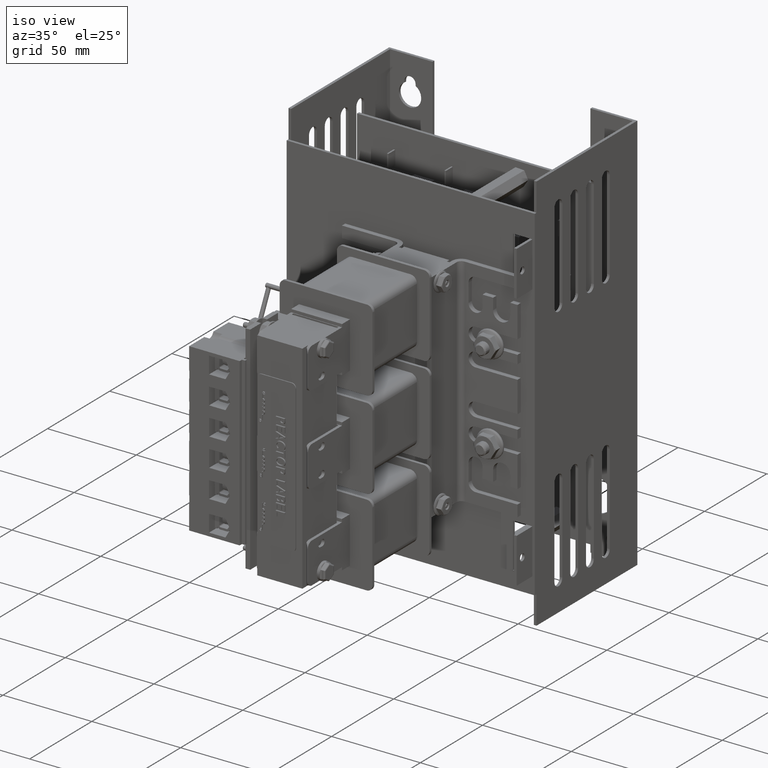
[diagram: clean part render]
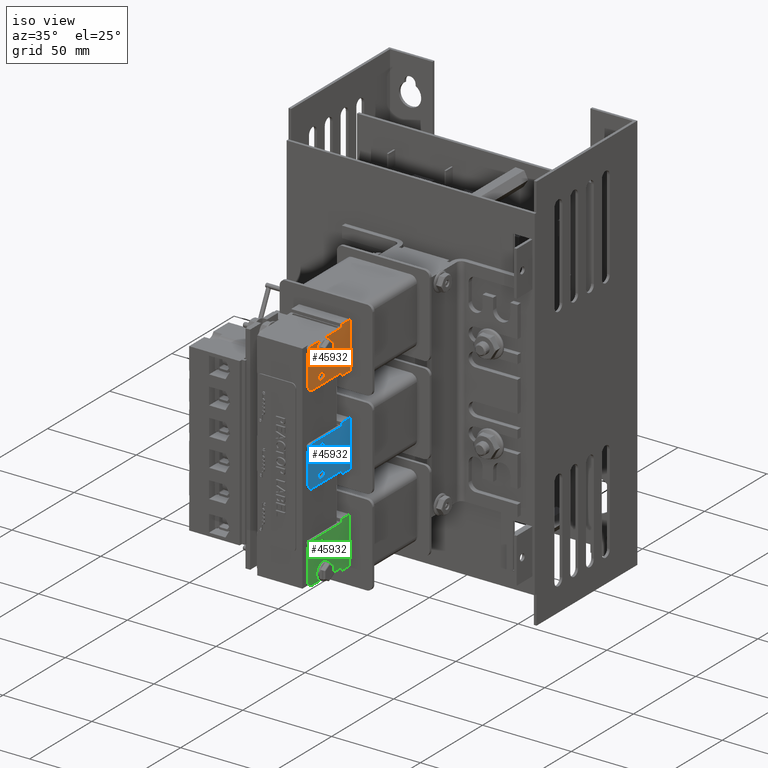
[diagram: same view with three faces highlighted in distinct colors, each labeled with its STEP entity id]
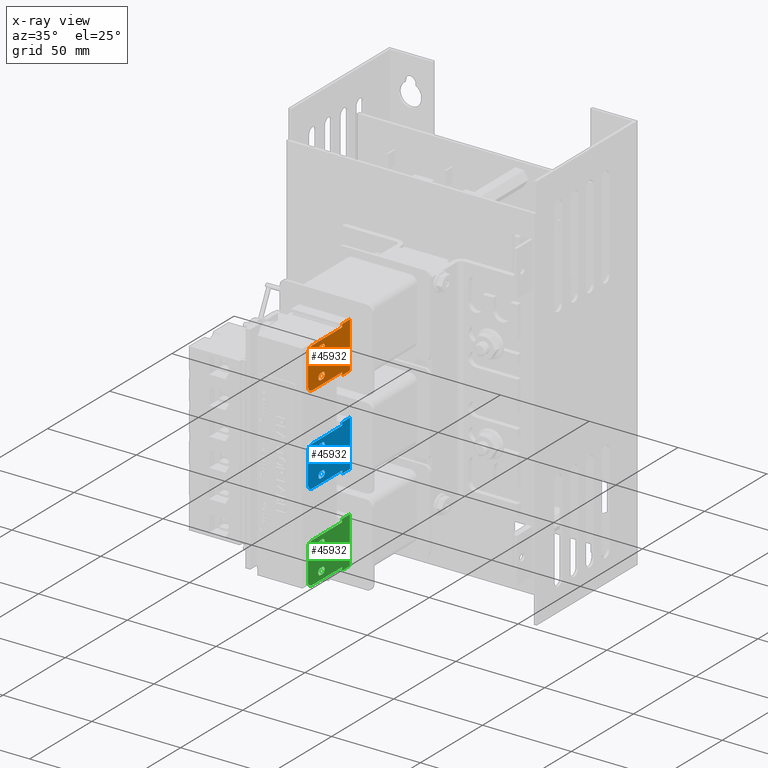
[diagram: x-ray of the same camera — body ghosted, the three highlighted faces saturated]
A machine part, iso view with three faces highlighted in distinct colors.
The next image is the same camera in x-ray (body ghosted, the three faces saturated) — at least one of them is partly hidden behind the body in this view.
Their STEP definitions:

[orange] entity #45932 — the highlighted planar face has unit normal (1, -0, -0).
#1419=FACE_BOUND('',#8494,.T.);
#1420=FACE_BOUND('',#8495,.T.);
#2563=PLANE('',#50130);
#5744=FACE_OUTER_BOUND('',#8493,.T.);
#8493=EDGE_LOOP('',(#39375,#39376,#39377,#39378,#39379,#39380,#39381,#39382,
#39383,#39384));
#8494=EDGE_LOOP('',(#39385,#39386,#39387,#39388));
#8495=EDGE_LOOP('',(#39389,#39390,#39391,#39392));
#12349=LINE('',#73508,#17084);
#12357=LINE('',#73535,#17092);
#12365=LINE('',#73556,#17100);
#12373=LINE('',#73583,#17108);
#12524=LINE('',#73920,#17259);
#12561=LINE('',#74015,#17296);
#12573=LINE('',#74046,#17308);
#12574=LINE('',#74048,#17309);
#12575=LINE('',#74049,#17310);
#12576=LINE('',#74051,#17311);
#12577=LINE('',#74053,#17312);
#12578=LINE('',#74054,#17313);
#17084=VECTOR('',#59043,0.393700787401575);
#17092=VECTOR('',#59073,0.393700787401575);
#17100=VECTOR('',#59091,0.393700787401575);
#17108=VECTOR('',#59121,0.393700787401575);
#17259=VECTOR('',#59402,0.393700787401575);
#17296=VECTOR('',#59491,0.393700787401575);
#17308=VECTOR('',#59517,0.393700787401575);
#17309=VECTOR('',#59518,0.393700787401575);
#17310=VECTOR('',#59519,0.393700787401575);
#17311=VECTOR('',#59520,0.393700787401575);
#17312=VECTOR('',#59521,0.393700787401575);
#17313=VECTOR('',#59522,0.393700787401575);
#19960=CIRCLE('',#50011,0.07);
#19964=CIRCLE('',#50019,0.07);
#19968=CIRCLE('',#50027,0.07);
#19972=CIRCLE('',#50035,0.07);
#19993=CIRCLE('',#50120,0.125);
#19996=CIRCLE('',#50129,0.125);
#22880=VERTEX_POINT('',#73505);
#22881=VERTEX_POINT('',#73507);
#22885=VERTEX_POINT('',#73519);
#22889=VERTEX_POINT('',#73534);
#22896=VERTEX_POINT('',#73553);
#22897=VERTEX_POINT('',#73555);
#22901=VERTEX_POINT('',#73567);
#22905=VERTEX_POINT('',#73582);
#23025=VERTEX_POINT('',#73917);
#23026=VERTEX_POINT('',#73919);
#23052=VERTEX_POINT('',#74000);
#23053=VERTEX_POINT('',#74001);
#23058=VERTEX_POINT('',#74013);
#23069=VERTEX_POINT('',#74041);
#23070=VERTEX_POINT('',#74045);
#23071=VERTEX_POINT('',#74047);
#23072=VERTEX_POINT('',#74050);
#23073=VERTEX_POINT('',#74052);
#28522=EDGE_CURVE('',#22881,#22880,#12349,.T.);
#28528=EDGE_CURVE('',#22885,#22881,#19960,.T.);
#28536=EDGE_CURVE('',#22889,#22885,#12357,.T.);
#28539=EDGE_CURVE('',#22880,#22889,#19964,.T.);
#28546=EDGE_CURVE('',#22897,#22896,#12365,.T.);
#28552=EDGE_CURVE('',#22901,#22897,#19968,.T.);
#28560=EDGE_CURVE('',#22905,#22901,#12373,.T.);
#28563=EDGE_CURVE('',#22896,#22905,#19972,.T.);
#28727=EDGE_CURVE('',#23025,#23026,#12524,.T.);
#28768=EDGE_CURVE('',#23052,#23053,#19993,.T.);
#28775=EDGE_CURVE('',#23052,#23058,#12561,.T.);
#28789=EDGE_CURVE('',#23069,#23058,#19996,.T.);
#28790=EDGE_CURVE('',#23070,#23069,#12573,.T.);
#28791=EDGE_CURVE('',#23070,#23071,#12574,.T.);
#28792=EDGE_CURVE('',#23026,#23071,#12575,.T.);
#28793=EDGE_CURVE('',#23025,#23072,#12576,.T.);
#28794=EDGE_CURVE('',#23072,#23073,#12577,.T.);
#28795=EDGE_CURVE('',#23073,#23053,#12578,.T.);
#39375=ORIENTED_EDGE('',*,*,#28768,.F.);
#39376=ORIENTED_EDGE('',*,*,#28775,.T.);
#39377=ORIENTED_EDGE('',*,*,#28789,.F.);
#39378=ORIENTED_EDGE('',*,*,#28790,.F.);
#39379=ORIENTED_EDGE('',*,*,#28791,.T.);
#39380=ORIENTED_EDGE('',*,*,#28792,.F.);
#39381=ORIENTED_EDGE('',*,*,#28727,.F.);
#39382=ORIENTED_EDGE('',*,*,#28793,.T.);
#39383=ORIENTED_EDGE('',*,*,#28794,.T.);
#39384=ORIENTED_EDGE('',*,*,#28795,.T.);
#39385=ORIENTED_EDGE('',*,*,#28536,.T.);
#39386=ORIENTED_EDGE('',*,*,#28528,.T.);
#39387=ORIENTED_EDGE('',*,*,#28522,.T.);
#39388=ORIENTED_EDGE('',*,*,#28539,.T.);
#39389=ORIENTED_EDGE('',*,*,#28560,.T.);
#39390=ORIENTED_EDGE('',*,*,#28552,.T.);
#39391=ORIENTED_EDGE('',*,*,#28546,.T.);
#39392=ORIENTED_EDGE('',*,*,#28563,.T.);
#45932=ADVANCED_FACE('',(#5744,#1419,#1420),#2563,.T.);
#50011=AXIS2_PLACEMENT_3D('',#73520,#59056,#59057);
#50019=AXIS2_PLACEMENT_3D('',#73539,#59079,#59080);
#50027=AXIS2_PLACEMENT_3D('',#73568,#59104,#59105);
#50035=AXIS2_PLACEMENT_3D('',#73587,#59127,#59128);
#50120=AXIS2_PLACEMENT_3D('',#74002,#59479,#59480);
#50129=AXIS2_PLACEMENT_3D('',#74043,#59513,#59514);
#50130=AXIS2_PLACEMENT_3D('',#74044,#59515,#59516);
#59043=DIRECTION('',(-1.45698559662094E-15,-1.49204103276227E-76,-1.));
#59056=DIRECTION('center_axis',(1.02406024892945E-61,-1.,0.));
#59057=DIRECTION('ref_axis',(0.997394122485867,2.49627536056786E-16,-0.0721454394306873));
#59073=DIRECTION('',(0.,0.,1.));
#59079=DIRECTION('center_axis',(1.02406024892945E-61,-1.,0.));
#59080=DIRECTION('ref_axis',(-1.,-2.50279734388873E-16,0.));
#59091=DIRECTION('',(-1.45698559662094E-15,-1.49204103276227E-76,1.));
#59104=DIRECTION('center_axis',(1.02406024892945E-61,-1.,0.));
#59105=DIRECTION('ref_axis',(-0.997394122485867,-2.13966459477245E-16,0.0721454394306873));
#59121=DIRECTION('',(0.,0.,-1.));
#59127=DIRECTION('center_axis',(1.02406024892945E-61,-1.,0.));
#59128=DIRECTION('ref_axis',(1.,2.14525486619034E-16,0.));
#59402=DIRECTION('',(1.,1.02406024892945E-61,-3.73807526705322E-31));
#59479=DIRECTION('center_axis',(1.02406024892945E-61,-1.,0.));
#59480=DIRECTION('ref_axis',(-0.707106781186549,0.,0.707106781186547));
#59491=DIRECTION('',(1.,1.96269059991116E-61,-8.42907325654887E-31));
#59513=DIRECTION('center_axis',(1.02406024892945E-61,-1.,0.));
#59514=DIRECTION('ref_axis',(0.707106781186549,0.,0.707106781186546));
#59515=DIRECTION('center_axis',(-1.02406024892945E-61,1.,0.));
#59516=DIRECTION('ref_axis',(0.,0.,1.));
#59517=DIRECTION('',(8.62708776488421E-31,0.,1.));
#59518=DIRECTION('',(1.,1.02406024892945E-61,-3.73807526705322E-31));
#59519=DIRECTION('',(0.,0.,1.));
#59520=DIRECTION('',(0.,0.,1.));
#59521=DIRECTION('',(1.,1.02406024892945E-61,-3.73807526705322E-31));
#59522=DIRECTION('',(8.62708776488421E-31,0.,1.));
#73505=CARTESIAN_POINT('',(-0.24,1.065,1.805));
#73507=CARTESIAN_POINT('',(-0.24,1.065,1.865));
#73508=CARTESIAN_POINT('',(-0.240000000000001,1.065,1.4));
#73519=CARTESIAN_POINT('',(-0.10018241142599,1.065,1.87005018076015));
#73520=CARTESIAN_POINT('Origin',(-0.17,1.065,1.865));
#73534=CARTESIAN_POINT('',(-0.10018241142599,1.065,1.79994981923985));
#73535=CARTESIAN_POINT('',(-0.10018241142599,1.065,1.39747490961993));
#73539=CARTESIAN_POINT('Origin',(-0.17,1.065,1.805));
#73553=CARTESIAN_POINT('',(-0.66,1.065,1.865));
#73555=CARTESIAN_POINT('',(-0.66,1.065,1.805));
#73556=CARTESIAN_POINT('',(-0.66,1.065,1.37));
#73567=CARTESIAN_POINT('',(-0.799817588574011,1.065,1.79994981923985));
#73568=CARTESIAN_POINT('Origin',(-0.73,1.065,1.805));
#73582=CARTESIAN_POINT('',(-0.799817588574011,1.065,1.87005018076015));
#73583=CARTESIAN_POINT('',(-0.799817588574011,1.065,1.37252509038007));
#73587=CARTESIAN_POINT('Origin',(-0.73,1.065,1.865));
#73917=CARTESIAN_POINT('',(-0.965,1.065,0.935));
#73919=CARTESIAN_POINT('',(0.0649999999999997,1.065,0.935));
#73920=CARTESIAN_POINT('',(-0.7075,1.065,0.935));
#74000=CARTESIAN_POINT('',(-0.775,1.065,2.265));
#74001=CARTESIAN_POINT('',(-0.9,1.065,2.14));
#74002=CARTESIAN_POINT('Origin',(-0.775,1.065,2.14));
#74013=CARTESIAN_POINT('',(-0.125,1.065,2.265));
#74015=CARTESIAN_POINT('',(0.0649999999999997,1.065,2.265));
#74041=CARTESIAN_POINT('',(-5.24514814783537E-16,1.065,2.14));
#74043=CARTESIAN_POINT('Origin',(-0.125,1.065,2.14));
#74044=CARTESIAN_POINT('Origin',(-0.965,1.065,0.935));
#74045=CARTESIAN_POINT('',(-5.24514814783538E-16,1.065,1.185));
#74046=CARTESIAN_POINT('',(-5.24514814783538E-16,1.065,1.185));
#74047=CARTESIAN_POINT('',(0.0649999999999997,1.065,1.185));
#74048=CARTESIAN_POINT('',(-0.965,1.065,1.185));
#74049=CARTESIAN_POINT('',(0.0649999999999997,1.065,0.935));
#74050=CARTESIAN_POINT('',(-0.965,1.065,1.185));
#74051=CARTESIAN_POINT('',(-0.965,1.065,0.935));
#74052=CARTESIAN_POINT('',(-0.9,1.065,1.185));
#74053=CARTESIAN_POINT('',(-0.965,1.065,1.185));
#74054=CARTESIAN_POINT('',(-0.9,1.065,1.185));

[blue] entity #45932 — the highlighted planar face has unit normal (1, 0, -0).
#1419=FACE_BOUND('',#8494,.T.);
#1420=FACE_BOUND('',#8495,.T.);
#2563=PLANE('',#50130);
#5744=FACE_OUTER_BOUND('',#8493,.T.);
#8493=EDGE_LOOP('',(#39375,#39376,#39377,#39378,#39379,#39380,#39381,#39382,
#39383,#39384));
#8494=EDGE_LOOP('',(#39385,#39386,#39387,#39388));
#8495=EDGE_LOOP('',(#39389,#39390,#39391,#39392));
#12349=LINE('',#73508,#17084);
#12357=LINE('',#73535,#17092);
#12365=LINE('',#73556,#17100);
#12373=LINE('',#73583,#17108);
#12524=LINE('',#73920,#17259);
#12561=LINE('',#74015,#17296);
#12573=LINE('',#74046,#17308);
#12574=LINE('',#74048,#17309);
#12575=LINE('',#74049,#17310);
#12576=LINE('',#74051,#17311);
#12577=LINE('',#74053,#17312);
#12578=LINE('',#74054,#17313);
#17084=VECTOR('',#59043,0.393700787401575);
#17092=VECTOR('',#59073,0.393700787401575);
#17100=VECTOR('',#59091,0.393700787401575);
#17108=VECTOR('',#59121,0.393700787401575);
#17259=VECTOR('',#59402,0.393700787401575);
#17296=VECTOR('',#59491,0.393700787401575);
#17308=VECTOR('',#59517,0.393700787401575);
#17309=VECTOR('',#59518,0.393700787401575);
#17310=VECTOR('',#59519,0.393700787401575);
#17311=VECTOR('',#59520,0.393700787401575);
#17312=VECTOR('',#59521,0.393700787401575);
#17313=VECTOR('',#59522,0.393700787401575);
#19960=CIRCLE('',#50011,0.07);
#19964=CIRCLE('',#50019,0.07);
#19968=CIRCLE('',#50027,0.07);
#19972=CIRCLE('',#50035,0.07);
#19993=CIRCLE('',#50120,0.125);
#19996=CIRCLE('',#50129,0.125);
#22880=VERTEX_POINT('',#73505);
#22881=VERTEX_POINT('',#73507);
#22885=VERTEX_POINT('',#73519);
#22889=VERTEX_POINT('',#73534);
#22896=VERTEX_POINT('',#73553);
#22897=VERTEX_POINT('',#73555);
#22901=VERTEX_POINT('',#73567);
#22905=VERTEX_POINT('',#73582);
#23025=VERTEX_POINT('',#73917);
#23026=VERTEX_POINT('',#73919);
#23052=VERTEX_POINT('',#74000);
#23053=VERTEX_POINT('',#74001);
#23058=VERTEX_POINT('',#74013);
#23069=VERTEX_POINT('',#74041);
#23070=VERTEX_POINT('',#74045);
#23071=VERTEX_POINT('',#74047);
#23072=VERTEX_POINT('',#74050);
#23073=VERTEX_POINT('',#74052);
#28522=EDGE_CURVE('',#22881,#22880,#12349,.T.);
#28528=EDGE_CURVE('',#22885,#22881,#19960,.T.);
#28536=EDGE_CURVE('',#22889,#22885,#12357,.T.);
#28539=EDGE_CURVE('',#22880,#22889,#19964,.T.);
#28546=EDGE_CURVE('',#22897,#22896,#12365,.T.);
#28552=EDGE_CURVE('',#22901,#22897,#19968,.T.);
#28560=EDGE_CURVE('',#22905,#22901,#12373,.T.);
#28563=EDGE_CURVE('',#22896,#22905,#19972,.T.);
#28727=EDGE_CURVE('',#23025,#23026,#12524,.T.);
#28768=EDGE_CURVE('',#23052,#23053,#19993,.T.);
#28775=EDGE_CURVE('',#23052,#23058,#12561,.T.);
#28789=EDGE_CURVE('',#23069,#23058,#19996,.T.);
#28790=EDGE_CURVE('',#23070,#23069,#12573,.T.);
#28791=EDGE_CURVE('',#23070,#23071,#12574,.T.);
#28792=EDGE_CURVE('',#23026,#23071,#12575,.T.);
#28793=EDGE_CURVE('',#23025,#23072,#12576,.T.);
#28794=EDGE_CURVE('',#23072,#23073,#12577,.T.);
#28795=EDGE_CURVE('',#23073,#23053,#12578,.T.);
#39375=ORIENTED_EDGE('',*,*,#28768,.F.);
#39376=ORIENTED_EDGE('',*,*,#28775,.T.);
#39377=ORIENTED_EDGE('',*,*,#28789,.F.);
#39378=ORIENTED_EDGE('',*,*,#28790,.F.);
#39379=ORIENTED_EDGE('',*,*,#28791,.T.);
#39380=ORIENTED_EDGE('',*,*,#28792,.F.);
#39381=ORIENTED_EDGE('',*,*,#28727,.F.);
#39382=ORIENTED_EDGE('',*,*,#28793,.T.);
#39383=ORIENTED_EDGE('',*,*,#28794,.T.);
#39384=ORIENTED_EDGE('',*,*,#28795,.T.);
#39385=ORIENTED_EDGE('',*,*,#28536,.T.);
#39386=ORIENTED_EDGE('',*,*,#28528,.T.);
#39387=ORIENTED_EDGE('',*,*,#28522,.T.);
#39388=ORIENTED_EDGE('',*,*,#28539,.T.);
#39389=ORIENTED_EDGE('',*,*,#28560,.T.);
#39390=ORIENTED_EDGE('',*,*,#28552,.T.);
#39391=ORIENTED_EDGE('',*,*,#28546,.T.);
#39392=ORIENTED_EDGE('',*,*,#28563,.T.);
#45932=ADVANCED_FACE('',(#5744,#1419,#1420),#2563,.T.);
#50011=AXIS2_PLACEMENT_3D('',#73520,#59056,#59057);
#50019=AXIS2_PLACEMENT_3D('',#73539,#59079,#59080);
#50027=AXIS2_PLACEMENT_3D('',#73568,#59104,#59105);
#50035=AXIS2_PLACEMENT_3D('',#73587,#59127,#59128);
#50120=AXIS2_PLACEMENT_3D('',#74002,#59479,#59480);
#50129=AXIS2_PLACEMENT_3D('',#74043,#59513,#59514);
#50130=AXIS2_PLACEMENT_3D('',#74044,#59515,#59516);
#59043=DIRECTION('',(-1.45698559662094E-15,-1.49204103276227E-76,-1.));
#59056=DIRECTION('center_axis',(1.02406024892945E-61,-1.,0.));
#59057=DIRECTION('ref_axis',(0.997394122485867,2.49627536056786E-16,-0.0721454394306873));
#59073=DIRECTION('',(0.,0.,1.));
#59079=DIRECTION('center_axis',(1.02406024892945E-61,-1.,0.));
#59080=DIRECTION('ref_axis',(-1.,-2.50279734388873E-16,0.));
#59091=DIRECTION('',(-1.45698559662094E-15,-1.49204103276227E-76,1.));
#59104=DIRECTION('center_axis',(1.02406024892945E-61,-1.,0.));
#59105=DIRECTION('ref_axis',(-0.997394122485867,-2.13966459477245E-16,0.0721454394306873));
#59121=DIRECTION('',(0.,0.,-1.));
#59127=DIRECTION('center_axis',(1.02406024892945E-61,-1.,0.));
#59128=DIRECTION('ref_axis',(1.,2.14525486619034E-16,0.));
#59402=DIRECTION('',(1.,1.02406024892945E-61,-3.73807526705322E-31));
#59479=DIRECTION('center_axis',(1.02406024892945E-61,-1.,0.));
#59480=DIRECTION('ref_axis',(-0.707106781186549,0.,0.707106781186547));
#59491=DIRECTION('',(1.,1.96269059991116E-61,-8.42907325654887E-31));
#59513=DIRECTION('center_axis',(1.02406024892945E-61,-1.,0.));
#59514=DIRECTION('ref_axis',(0.707106781186549,0.,0.707106781186546));
#59515=DIRECTION('center_axis',(-1.02406024892945E-61,1.,0.));
#59516=DIRECTION('ref_axis',(0.,0.,1.));
#59517=DIRECTION('',(8.62708776488421E-31,0.,1.));
#59518=DIRECTION('',(1.,1.02406024892945E-61,-3.73807526705322E-31));
#59519=DIRECTION('',(0.,0.,1.));
#59520=DIRECTION('',(0.,0.,1.));
#59521=DIRECTION('',(1.,1.02406024892945E-61,-3.73807526705322E-31));
#59522=DIRECTION('',(8.62708776488421E-31,0.,1.));
#73505=CARTESIAN_POINT('',(-0.24,1.065,1.805));
#73507=CARTESIAN_POINT('',(-0.24,1.065,1.865));
#73508=CARTESIAN_POINT('',(-0.240000000000001,1.065,1.4));
#73519=CARTESIAN_POINT('',(-0.10018241142599,1.065,1.87005018076015));
#73520=CARTESIAN_POINT('Origin',(-0.17,1.065,1.865));
#73534=CARTESIAN_POINT('',(-0.10018241142599,1.065,1.79994981923985));
#73535=CARTESIAN_POINT('',(-0.10018241142599,1.065,1.39747490961993));
#73539=CARTESIAN_POINT('Origin',(-0.17,1.065,1.805));
#73553=CARTESIAN_POINT('',(-0.66,1.065,1.865));
#73555=CARTESIAN_POINT('',(-0.66,1.065,1.805));
#73556=CARTESIAN_POINT('',(-0.66,1.065,1.37));
#73567=CARTESIAN_POINT('',(-0.799817588574011,1.065,1.79994981923985));
#73568=CARTESIAN_POINT('Origin',(-0.73,1.065,1.805));
#73582=CARTESIAN_POINT('',(-0.799817588574011,1.065,1.87005018076015));
#73583=CARTESIAN_POINT('',(-0.799817588574011,1.065,1.37252509038007));
#73587=CARTESIAN_POINT('Origin',(-0.73,1.065,1.865));
#73917=CARTESIAN_POINT('',(-0.965,1.065,0.935));
#73919=CARTESIAN_POINT('',(0.0649999999999997,1.065,0.935));
#73920=CARTESIAN_POINT('',(-0.7075,1.065,0.935));
#74000=CARTESIAN_POINT('',(-0.775,1.065,2.265));
#74001=CARTESIAN_POINT('',(-0.9,1.065,2.14));
#74002=CARTESIAN_POINT('Origin',(-0.775,1.065,2.14));
#74013=CARTESIAN_POINT('',(-0.125,1.065,2.265));
#74015=CARTESIAN_POINT('',(0.0649999999999997,1.065,2.265));
#74041=CARTESIAN_POINT('',(-5.24514814783537E-16,1.065,2.14));
#74043=CARTESIAN_POINT('Origin',(-0.125,1.065,2.14));
#74044=CARTESIAN_POINT('Origin',(-0.965,1.065,0.935));
#74045=CARTESIAN_POINT('',(-5.24514814783538E-16,1.065,1.185));
#74046=CARTESIAN_POINT('',(-5.24514814783538E-16,1.065,1.185));
#74047=CARTESIAN_POINT('',(0.0649999999999997,1.065,1.185));
#74048=CARTESIAN_POINT('',(-0.965,1.065,1.185));
#74049=CARTESIAN_POINT('',(0.0649999999999997,1.065,0.935));
#74050=CARTESIAN_POINT('',(-0.965,1.065,1.185));
#74051=CARTESIAN_POINT('',(-0.965,1.065,0.935));
#74052=CARTESIAN_POINT('',(-0.9,1.065,1.185));
#74053=CARTESIAN_POINT('',(-0.965,1.065,1.185));
#74054=CARTESIAN_POINT('',(-0.9,1.065,1.185));

[green] entity #45932 — the highlighted planar face has unit normal (1, -0, -0).
#1419=FACE_BOUND('',#8494,.T.);
#1420=FACE_BOUND('',#8495,.T.);
#2563=PLANE('',#50130);
#5744=FACE_OUTER_BOUND('',#8493,.T.);
#8493=EDGE_LOOP('',(#39375,#39376,#39377,#39378,#39379,#39380,#39381,#39382,
#39383,#39384));
#8494=EDGE_LOOP('',(#39385,#39386,#39387,#39388));
#8495=EDGE_LOOP('',(#39389,#39390,#39391,#39392));
#12349=LINE('',#73508,#17084);
#12357=LINE('',#73535,#17092);
#12365=LINE('',#73556,#17100);
#12373=LINE('',#73583,#17108);
#12524=LINE('',#73920,#17259);
#12561=LINE('',#74015,#17296);
#12573=LINE('',#74046,#17308);
#12574=LINE('',#74048,#17309);
#12575=LINE('',#74049,#17310);
#12576=LINE('',#74051,#17311);
#12577=LINE('',#74053,#17312);
#12578=LINE('',#74054,#17313);
#17084=VECTOR('',#59043,0.393700787401575);
#17092=VECTOR('',#59073,0.393700787401575);
#17100=VECTOR('',#59091,0.393700787401575);
#17108=VECTOR('',#59121,0.393700787401575);
#17259=VECTOR('',#59402,0.393700787401575);
#17296=VECTOR('',#59491,0.393700787401575);
#17308=VECTOR('',#59517,0.393700787401575);
#17309=VECTOR('',#59518,0.393700787401575);
#17310=VECTOR('',#59519,0.393700787401575);
#17311=VECTOR('',#59520,0.393700787401575);
#17312=VECTOR('',#59521,0.393700787401575);
#17313=VECTOR('',#59522,0.393700787401575);
#19960=CIRCLE('',#50011,0.07);
#19964=CIRCLE('',#50019,0.07);
#19968=CIRCLE('',#50027,0.07);
#19972=CIRCLE('',#50035,0.07);
#19993=CIRCLE('',#50120,0.125);
#19996=CIRCLE('',#50129,0.125);
#22880=VERTEX_POINT('',#73505);
#22881=VERTEX_POINT('',#73507);
#22885=VERTEX_POINT('',#73519);
#22889=VERTEX_POINT('',#73534);
#22896=VERTEX_POINT('',#73553);
#22897=VERTEX_POINT('',#73555);
#22901=VERTEX_POINT('',#73567);
#22905=VERTEX_POINT('',#73582);
#23025=VERTEX_POINT('',#73917);
#23026=VERTEX_POINT('',#73919);
#23052=VERTEX_POINT('',#74000);
#23053=VERTEX_POINT('',#74001);
#23058=VERTEX_POINT('',#74013);
#23069=VERTEX_POINT('',#74041);
#23070=VERTEX_POINT('',#74045);
#23071=VERTEX_POINT('',#74047);
#23072=VERTEX_POINT('',#74050);
#23073=VERTEX_POINT('',#74052);
#28522=EDGE_CURVE('',#22881,#22880,#12349,.T.);
#28528=EDGE_CURVE('',#22885,#22881,#19960,.T.);
#28536=EDGE_CURVE('',#22889,#22885,#12357,.T.);
#28539=EDGE_CURVE('',#22880,#22889,#19964,.T.);
#28546=EDGE_CURVE('',#22897,#22896,#12365,.T.);
#28552=EDGE_CURVE('',#22901,#22897,#19968,.T.);
#28560=EDGE_CURVE('',#22905,#22901,#12373,.T.);
#28563=EDGE_CURVE('',#22896,#22905,#19972,.T.);
#28727=EDGE_CURVE('',#23025,#23026,#12524,.T.);
#28768=EDGE_CURVE('',#23052,#23053,#19993,.T.);
#28775=EDGE_CURVE('',#23052,#23058,#12561,.T.);
#28789=EDGE_CURVE('',#23069,#23058,#19996,.T.);
#28790=EDGE_CURVE('',#23070,#23069,#12573,.T.);
#28791=EDGE_CURVE('',#23070,#23071,#12574,.T.);
#28792=EDGE_CURVE('',#23026,#23071,#12575,.T.);
#28793=EDGE_CURVE('',#23025,#23072,#12576,.T.);
#28794=EDGE_CURVE('',#23072,#23073,#12577,.T.);
#28795=EDGE_CURVE('',#23073,#23053,#12578,.T.);
#39375=ORIENTED_EDGE('',*,*,#28768,.F.);
#39376=ORIENTED_EDGE('',*,*,#28775,.T.);
#39377=ORIENTED_EDGE('',*,*,#28789,.F.);
#39378=ORIENTED_EDGE('',*,*,#28790,.F.);
#39379=ORIENTED_EDGE('',*,*,#28791,.T.);
#39380=ORIENTED_EDGE('',*,*,#28792,.F.);
#39381=ORIENTED_EDGE('',*,*,#28727,.F.);
#39382=ORIENTED_EDGE('',*,*,#28793,.T.);
#39383=ORIENTED_EDGE('',*,*,#28794,.T.);
#39384=ORIENTED_EDGE('',*,*,#28795,.T.);
#39385=ORIENTED_EDGE('',*,*,#28536,.T.);
#39386=ORIENTED_EDGE('',*,*,#28528,.T.);
#39387=ORIENTED_EDGE('',*,*,#28522,.T.);
#39388=ORIENTED_EDGE('',*,*,#28539,.T.);
#39389=ORIENTED_EDGE('',*,*,#28560,.T.);
#39390=ORIENTED_EDGE('',*,*,#28552,.T.);
#39391=ORIENTED_EDGE('',*,*,#28546,.T.);
#39392=ORIENTED_EDGE('',*,*,#28563,.T.);
#45932=ADVANCED_FACE('',(#5744,#1419,#1420),#2563,.T.);
#50011=AXIS2_PLACEMENT_3D('',#73520,#59056,#59057);
#50019=AXIS2_PLACEMENT_3D('',#73539,#59079,#59080);
#50027=AXIS2_PLACEMENT_3D('',#73568,#59104,#59105);
#50035=AXIS2_PLACEMENT_3D('',#73587,#59127,#59128);
#50120=AXIS2_PLACEMENT_3D('',#74002,#59479,#59480);
#50129=AXIS2_PLACEMENT_3D('',#74043,#59513,#59514);
#50130=AXIS2_PLACEMENT_3D('',#74044,#59515,#59516);
#59043=DIRECTION('',(-1.45698559662094E-15,-1.49204103276227E-76,-1.));
#59056=DIRECTION('center_axis',(1.02406024892945E-61,-1.,0.));
#59057=DIRECTION('ref_axis',(0.997394122485867,2.49627536056786E-16,-0.0721454394306873));
#59073=DIRECTION('',(0.,0.,1.));
#59079=DIRECTION('center_axis',(1.02406024892945E-61,-1.,0.));
#59080=DIRECTION('ref_axis',(-1.,-2.50279734388873E-16,0.));
#59091=DIRECTION('',(-1.45698559662094E-15,-1.49204103276227E-76,1.));
#59104=DIRECTION('center_axis',(1.02406024892945E-61,-1.,0.));
#59105=DIRECTION('ref_axis',(-0.997394122485867,-2.13966459477245E-16,0.0721454394306873));
#59121=DIRECTION('',(0.,0.,-1.));
#59127=DIRECTION('center_axis',(1.02406024892945E-61,-1.,0.));
#59128=DIRECTION('ref_axis',(1.,2.14525486619034E-16,0.));
#59402=DIRECTION('',(1.,1.02406024892945E-61,-3.73807526705322E-31));
#59479=DIRECTION('center_axis',(1.02406024892945E-61,-1.,0.));
#59480=DIRECTION('ref_axis',(-0.707106781186549,0.,0.707106781186547));
#59491=DIRECTION('',(1.,1.96269059991116E-61,-8.42907325654887E-31));
#59513=DIRECTION('center_axis',(1.02406024892945E-61,-1.,0.));
#59514=DIRECTION('ref_axis',(0.707106781186549,0.,0.707106781186546));
#59515=DIRECTION('center_axis',(-1.02406024892945E-61,1.,0.));
#59516=DIRECTION('ref_axis',(0.,0.,1.));
#59517=DIRECTION('',(8.62708776488421E-31,0.,1.));
#59518=DIRECTION('',(1.,1.02406024892945E-61,-3.73807526705322E-31));
#59519=DIRECTION('',(0.,0.,1.));
#59520=DIRECTION('',(0.,0.,1.));
#59521=DIRECTION('',(1.,1.02406024892945E-61,-3.73807526705322E-31));
#59522=DIRECTION('',(8.62708776488421E-31,0.,1.));
#73505=CARTESIAN_POINT('',(-0.24,1.065,1.805));
#73507=CARTESIAN_POINT('',(-0.24,1.065,1.865));
#73508=CARTESIAN_POINT('',(-0.240000000000001,1.065,1.4));
#73519=CARTESIAN_POINT('',(-0.10018241142599,1.065,1.87005018076015));
#73520=CARTESIAN_POINT('Origin',(-0.17,1.065,1.865));
#73534=CARTESIAN_POINT('',(-0.10018241142599,1.065,1.79994981923985));
#73535=CARTESIAN_POINT('',(-0.10018241142599,1.065,1.39747490961993));
#73539=CARTESIAN_POINT('Origin',(-0.17,1.065,1.805));
#73553=CARTESIAN_POINT('',(-0.66,1.065,1.865));
#73555=CARTESIAN_POINT('',(-0.66,1.065,1.805));
#73556=CARTESIAN_POINT('',(-0.66,1.065,1.37));
#73567=CARTESIAN_POINT('',(-0.799817588574011,1.065,1.79994981923985));
#73568=CARTESIAN_POINT('Origin',(-0.73,1.065,1.805));
#73582=CARTESIAN_POINT('',(-0.799817588574011,1.065,1.87005018076015));
#73583=CARTESIAN_POINT('',(-0.799817588574011,1.065,1.37252509038007));
#73587=CARTESIAN_POINT('Origin',(-0.73,1.065,1.865));
#73917=CARTESIAN_POINT('',(-0.965,1.065,0.935));
#73919=CARTESIAN_POINT('',(0.0649999999999997,1.065,0.935));
#73920=CARTESIAN_POINT('',(-0.7075,1.065,0.935));
#74000=CARTESIAN_POINT('',(-0.775,1.065,2.265));
#74001=CARTESIAN_POINT('',(-0.9,1.065,2.14));
#74002=CARTESIAN_POINT('Origin',(-0.775,1.065,2.14));
#74013=CARTESIAN_POINT('',(-0.125,1.065,2.265));
#74015=CARTESIAN_POINT('',(0.0649999999999997,1.065,2.265));
#74041=CARTESIAN_POINT('',(-5.24514814783537E-16,1.065,2.14));
#74043=CARTESIAN_POINT('Origin',(-0.125,1.065,2.14));
#74044=CARTESIAN_POINT('Origin',(-0.965,1.065,0.935));
#74045=CARTESIAN_POINT('',(-5.24514814783538E-16,1.065,1.185));
#74046=CARTESIAN_POINT('',(-5.24514814783538E-16,1.065,1.185));
#74047=CARTESIAN_POINT('',(0.0649999999999997,1.065,1.185));
#74048=CARTESIAN_POINT('',(-0.965,1.065,1.185));
#74049=CARTESIAN_POINT('',(0.0649999999999997,1.065,0.935));
#74050=CARTESIAN_POINT('',(-0.965,1.065,1.185));
#74051=CARTESIAN_POINT('',(-0.965,1.065,0.935));
#74052=CARTESIAN_POINT('',(-0.9,1.065,1.185));
#74053=CARTESIAN_POINT('',(-0.965,1.065,1.185));
#74054=CARTESIAN_POINT('',(-0.9,1.065,1.185));